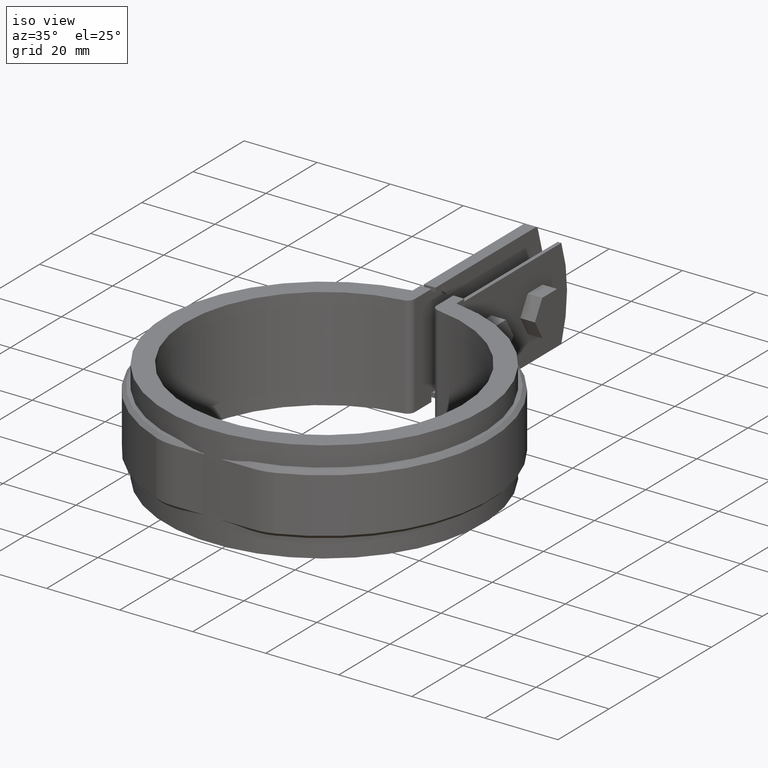
[diagram: clean part render]
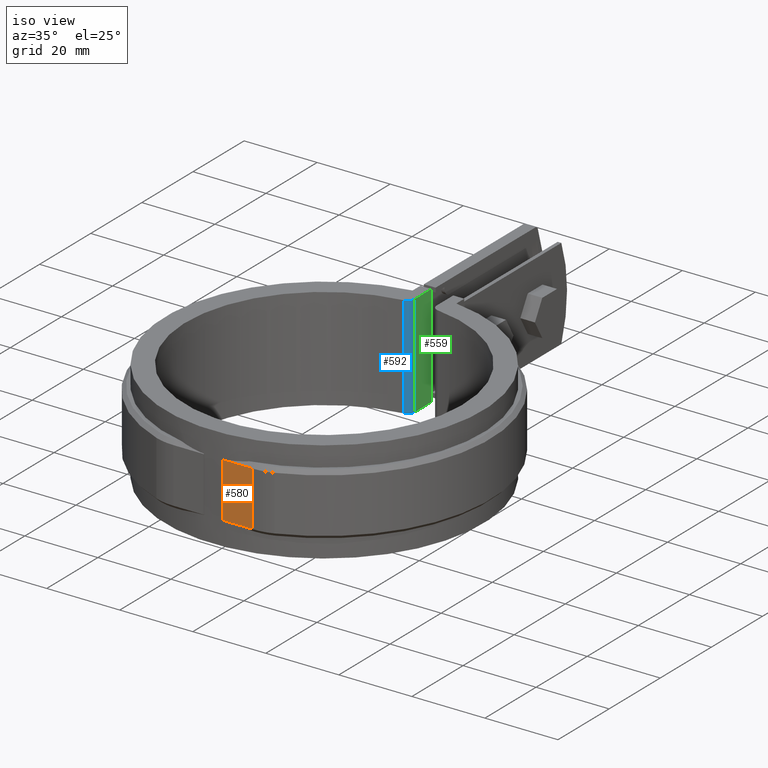
[diagram: same view with three faces highlighted in distinct colors, each labeled with its STEP entity id]
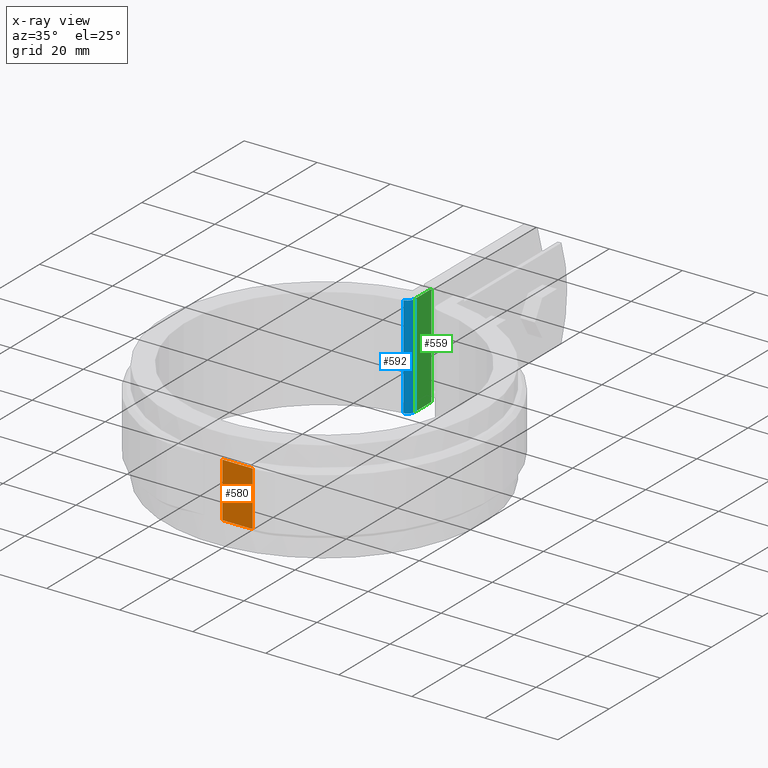
[diagram: x-ray of the same camera — body ghosted, the three highlighted faces saturated]
A machine part, iso view with three faces highlighted in distinct colors.
The next image is the same camera in x-ray (body ghosted, the three faces saturated) — at least one of them is partly hidden behind the body in this view.
Their STEP definitions:

[orange] entity #580 — the highlighted planar face has unit normal (0, 1, 0).
#580 = ADVANCED_FACE( '', ( #1090 ), #1091, .F. );
#1090 = FACE_OUTER_BOUND( '', #2350, .T. );
#1091 = PLANE( '', #2351 );
#2350 = EDGE_LOOP( '', ( #5441, #5442, #5443, #5444 ) );
#2351 = AXIS2_PLACEMENT_3D( '', #5445, #5446, #5447 );
#5441 = ORIENTED_EDGE( '', *, *, #7921, .F. );
#5442 = ORIENTED_EDGE( '', *, *, #7914, .T. );
#5443 = ORIENTED_EDGE( '', *, *, #7922, .T. );
#5444 = ORIENTED_EDGE( '', *, *, #7923, .T. );
#5445 = CARTESIAN_POINT( '', ( 10.8627804912002, -43.5000000000000, 8.50000000000000 ) );
#5446 = DIRECTION( '', ( 0.000000000000000, 1.00000000000000, 0.000000000000000 ) );
#5447 = DIRECTION( '', ( 1.00000000000000, 0.000000000000000, 0.000000000000000 ) );
#7914 = EDGE_CURVE( '', #9203, #9205, #9207, .F. );
#7921 = EDGE_CURVE( '', #9203, #8783, #9214, .T. );
#7922 = EDGE_CURVE( '', #9205, #9215, #9216, .T. );
#7923 = EDGE_CURVE( '', #9215, #8783, #9217, .T. );
#8783 = VERTEX_POINT( '', #11855 );
#9203 = VERTEX_POINT( '', #13019 );
#9205 = VERTEX_POINT( '', #13022 );
#9207 = LINE( '', #13025, #13026 );
#9214 = LINE( '', #13038, #13039 );
#9215 = VERTEX_POINT( '', #13040 );
#9216 = LINE( '', #13041, #13042 );
#9217 = LINE( '', #13043, #13044 );
#11855 = CARTESIAN_POINT( '', ( 10.8627804912002, -43.5000000000000, -7.50000000000000 ) );
#13019 = CARTESIAN_POINT( '', ( 10.8627804912002, -43.5000000000000, 7.50000000000000 ) );
#13022 = CARTESIAN_POINT( '', ( 2.50000000000000, -43.5000000000000, 7.50000000000000 ) );
#13025 = CARTESIAN_POINT( '', ( 10.8627804912002, -43.5000000000000, 7.50000000000000 ) );
#13026 = VECTOR( '', #14920, 1000.00000000000 );
#13038 = CARTESIAN_POINT( '', ( 10.8627804912002, -43.5000000000000, 8.50000000000000 ) );
#13039 = VECTOR( '', #14929, 1000.00000000000 );
#13040 = CARTESIAN_POINT( '', ( 2.50000000000000, -43.5000000000000, -7.50000000000000 ) );
#13041 = CARTESIAN_POINT( '', ( 2.50000000000000, -43.5000000000000, 8.50000000000000 ) );
#13042 = VECTOR( '', #14930, 1000.00000000000 );
#13043 = CARTESIAN_POINT( '', ( 10.8627804912002, -43.5000000000000, -7.50000000000000 ) );
#13044 = VECTOR( '', #14931, 1000.00000000000 );
#14920 = DIRECTION( '', ( 1.00000000000000, 0.000000000000000, 0.000000000000000 ) );
#14929 = DIRECTION( '', ( 0.000000000000000, 0.000000000000000, -1.00000000000000 ) );
#14930 = DIRECTION( '', ( 3.08148791101957E-033, 0.000000000000000, -1.00000000000000 ) );
#14931 = DIRECTION( '', ( 1.00000000000000, 0.000000000000000, 0.000000000000000 ) );

[blue] entity #592 — the highlighted cylindrical surface (edge-blend (fillet) strip) has radius 2 mm, axis along (0, 0, 1).
#592 = ADVANCED_FACE( '', ( #1114 ), #1115, .T. );
#1114 = FACE_OUTER_BOUND( '', #2450, .T. );
#1115 = CYLINDRICAL_SURFACE( '', #2451, 2.00000000000000 );
#2450 = EDGE_LOOP( '', ( #5561, #5562, #5563, #5564 ) );
#2451 = AXIS2_PLACEMENT_3D( '', #5565, #5566, #5567 );
#5561 = ORIENTED_EDGE( '', *, *, #7932, .F. );
#5562 = ORIENTED_EDGE( '', *, *, #7884, .F. );
#5563 = ORIENTED_EDGE( '', *, *, #7927, .F. );
#5564 = ORIENTED_EDGE( '', *, *, #7931, .F. );
#5565 = CARTESIAN_POINT( '', ( -5.00000000000002, 39.6862696659689, -14.0000000000000 ) );
#5566 = DIRECTION( '', ( 0.000000000000000, 0.000000000000000, 1.00000000000000 ) );
#5567 = DIRECTION( '', ( 1.00000000000000, 0.000000000000000, 0.000000000000000 ) );
#7884 = EDGE_CURVE( '', #9160, #9162, #9163, .T. );
#7927 = EDGE_CURVE( '', #9220, #9160, #9222, .F. );
#7931 = EDGE_CURVE( '', #9225, #9220, #9227, .T. );
#7932 = EDGE_CURVE( '', #9162, #9225, #9228, .T. );
#9160 = VERTEX_POINT( '', #12904 );
#9162 = VERTEX_POINT( '', #12907 );
#9163 = LINE( '', #12908, #12909 );
#9220 = VERTEX_POINT( '', #13049 );
#9222 = CIRCLE( '', #13051, 2.00000000000000 );
#9225 = VERTEX_POINT( '', #13059 );
#9227 = LINE( '', #13061, #13062 );
#9228 = CIRCLE( '', #13063, 2.00000000000000 );
#12904 = CARTESIAN_POINT( '', ( -3.00000000000002, 39.6862696659689, 14.0000000000000 ) );
#12907 = CARTESIAN_POINT( '', ( -3.00000000000002, 39.6862696659689, -14.0000000000000 ) );
#12908 = CARTESIAN_POINT( '', ( -3.00000000000002, 39.6862696659689, -14.0000000000000 ) );
#12909 = VECTOR( '', #14894, 1000.00000000000 );
#13049 = CARTESIAN_POINT( '', ( -4.75000000000002, 37.7019561826704, 14.0000000000000 ) );
#13051 = AXIS2_PLACEMENT_3D( '', #14937, #14938, #14939 );
#13059 = CARTESIAN_POINT( '', ( -4.75000000000002, 37.7019561826704, -14.0000000000000 ) );
#13061 = CARTESIAN_POINT( '', ( -4.75000000000002, 37.7019561826704, -14.0000000000000 ) );
#13062 = VECTOR( '', #14944, 1000.00000000000 );
#13063 = AXIS2_PLACEMENT_3D( '', #14945, #14946, #14947 );
#14894 = DIRECTION( '', ( 0.000000000000000, 0.000000000000000, -1.00000000000000 ) );
#14937 = CARTESIAN_POINT( '', ( -5.00000000000002, 39.6862696659689, 14.0000000000000 ) );
#14938 = DIRECTION( '', ( 0.000000000000000, 0.000000000000000, -1.00000000000000 ) );
#14939 = DIRECTION( '', ( -1.00000000000000, 0.000000000000000, 0.000000000000000 ) );
#14944 = DIRECTION( '', ( 0.000000000000000, 0.000000000000000, 1.00000000000000 ) );
#14945 = CARTESIAN_POINT( '', ( -5.00000000000002, 39.6862696659689, -14.0000000000000 ) );
#14946 = DIRECTION( '', ( 0.000000000000000, 0.000000000000000, -1.00000000000000 ) );
#14947 = DIRECTION( '', ( -1.00000000000000, 0.000000000000000, 0.000000000000000 ) );

[green] entity #559 — the highlighted planar face has unit normal (1, -0, 0).
#559 = ADVANCED_FACE( '', ( #1048 ), #1049, .T. );
#1048 = FACE_OUTER_BOUND( '', #2122, .T. );
#1049 = PLANE( '', #2123 );
#2122 = EDGE_LOOP( '', ( #5268, #5269, #5270, #5271 ) );
#2123 = AXIS2_PLACEMENT_3D( '', #5272, #5273, #5274 );
#5268 = ORIENTED_EDGE( '', *, *, #7883, .F. );
#5269 = ORIENTED_EDGE( '', *, *, #7884, .T. );
#5270 = ORIENTED_EDGE( '', *, *, #7885, .T. );
#5271 = ORIENTED_EDGE( '', *, *, #7878, .T. );
#5272 = CARTESIAN_POINT( '', ( -3.00000000000002, 37.8813938497516, -14.0000000000000 ) );
#5273 = DIRECTION( '', ( 1.00000000000000, -6.07153216591882E-017, 0.000000000000000 ) );
#5274 = DIRECTION( '', ( 0.000000000000000, 0.000000000000000, 1.00000000000000 ) );
#7878 = EDGE_CURVE( '', #9152, #9150, #9153, .F. );
#7883 = EDGE_CURVE( '', #9160, #9150, #9161, .F. );
#7884 = EDGE_CURVE( '', #9160, #9162, #9163, .T. );
#7885 = EDGE_CURVE( '', #9162, #9152, #9164, .T. );
#9150 = VERTEX_POINT( '', #12888 );
#9152 = VERTEX_POINT( '', #12891 );
#9153 = LINE( '', #12892, #12893 );
#9160 = VERTEX_POINT( '', #12904 );
#9161 = LINE( '', #12905, #12906 );
#9162 = VERTEX_POINT( '', #12907 );
#9163 = LINE( '', #12908, #12909 );
#9164 = LINE( '', #12910, #12911 );
#12888 = CARTESIAN_POINT( '', ( -3.00000000000002, 46.1500000000000, 14.0000000000000 ) );
#12891 = CARTESIAN_POINT( '', ( -3.00000000000002, 46.1500000000000, -14.0000000000000 ) );
#12892 = CARTESIAN_POINT( '', ( -3.00000000000002, 46.1500000000000, -14.0000000000000 ) );
#12893 = VECTOR( '', #14888, 1000.00000000000 );
#12904 = CARTESIAN_POINT( '', ( -3.00000000000002, 39.6862696659689, 14.0000000000000 ) );
#12905 = CARTESIAN_POINT( '', ( -3.00000000000002, 1.82145964977566E-016, 14.0000000000000 ) );
#12906 = VECTOR( '', #14893, 1000.00000000000 );
#12907 = CARTESIAN_POINT( '', ( -3.00000000000002, 39.6862696659689, -14.0000000000000 ) );
#12908 = CARTESIAN_POINT( '', ( -3.00000000000002, 39.6862696659689, -14.0000000000000 ) );
#12909 = VECTOR( '', #14894, 1000.00000000000 );
#12910 = CARTESIAN_POINT( '', ( -3.00000000000002, 37.8813938497516, -14.0000000000000 ) );
#12911 = VECTOR( '', #14895, 1000.00000000000 );
#14888 = DIRECTION( '', ( 0.000000000000000, 0.000000000000000, -1.00000000000000 ) );
#14893 = DIRECTION( '', ( -6.07153216591882E-017, -1.00000000000000, 0.000000000000000 ) );
#14894 = DIRECTION( '', ( 0.000000000000000, 0.000000000000000, -1.00000000000000 ) );
#14895 = DIRECTION( '', ( 6.07153216591882E-017, 1.00000000000000, 0.000000000000000 ) );